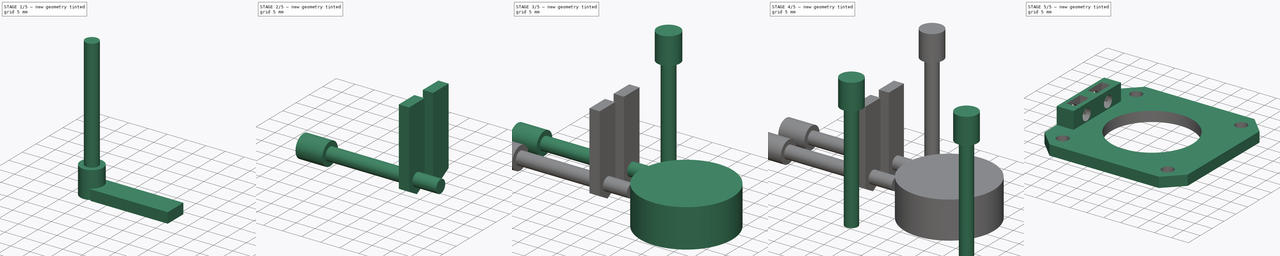
[diagram: build sequence overview — one tinted view per stage of 5, left to right]
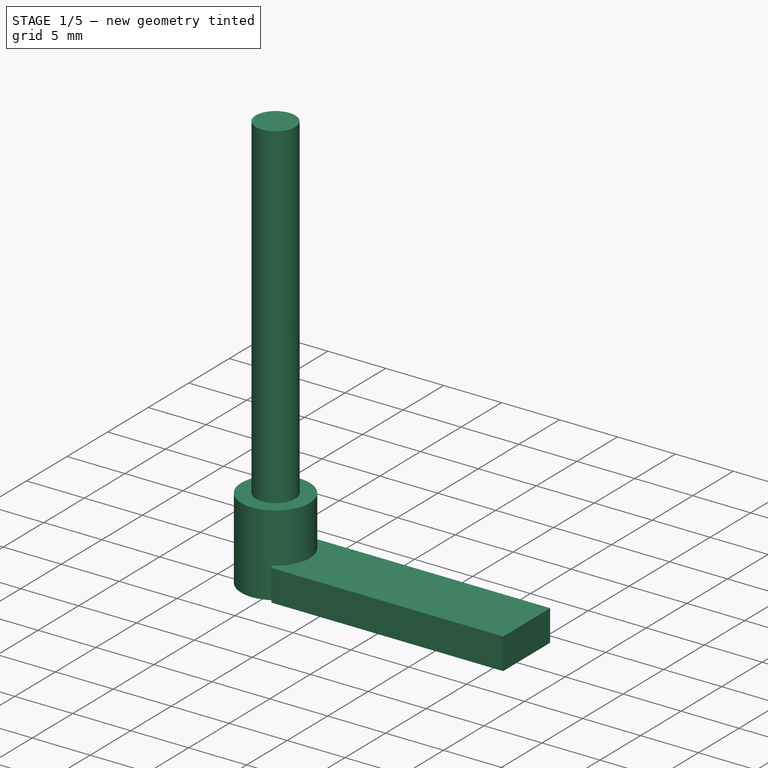
[diagram: stage 1 of 5 — iso view after this stage's code; geometry added in this stage tinted green]
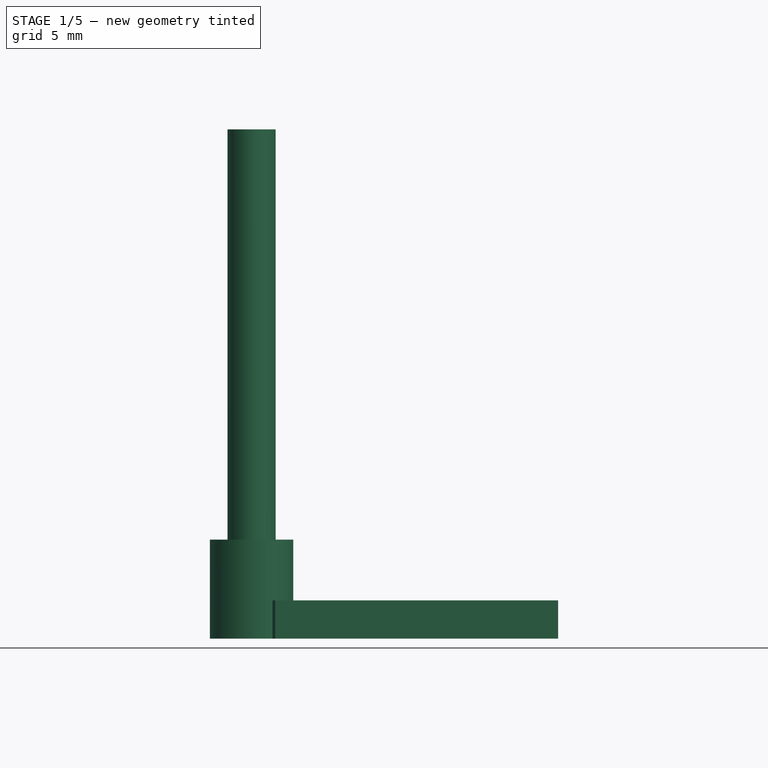
[diagram: stage 1 of 5 — front view after this stage's code; geometry added in this stage tinted green]
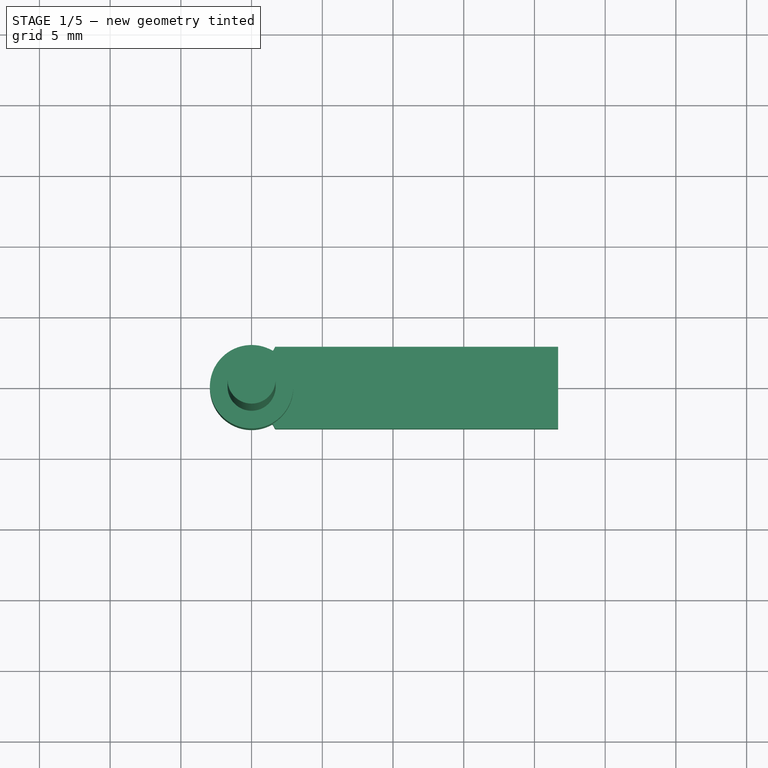
[diagram: stage 1 of 5 — top view after this stage's code; geometry added in this stage tinted green]
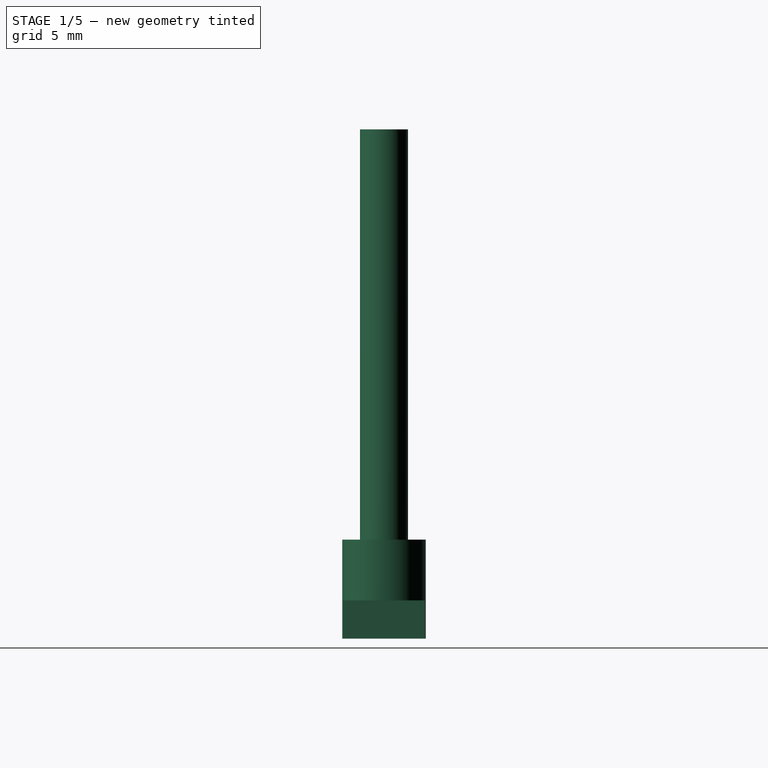
[diagram: stage 1 of 5 — right view after this stage's code; geometry added in this stage tinted green]
FCSTD DOCUMENT  (FreeCAD 0.16R6460 (Git))
Label: Art4MotorFix
License: All rights reserved
LicenseURL: http://en.wikipedia.org/wiki/All_rights_reserved
objects: Part::FeaturePython×8, Part::Cylinder×3, Part::MultiFuse×3, Sketcher::SketchObject×2, PartDesign::Pad×2, Part::Box×1, Part::Cut×1, App::DocumentObjectGroup×1
note: 22 computed .brp shape members not serialized (recipe doc carries the construction recipe); baked Part::Feature solids carry a one-line shape summary decoded from their .brp

FEATURE [Part::Cylinder] Cylinder  label="M3BoltHead"
  Angle = 360
  Height = 7
  Radius = 2.95
FEATURE [Part::Cylinder] Cylinder001  label="M3BoltBody"
  Angle = 360
  Height = 30
  Placement = pos=(0,0,6) rot=(0,0,1;0rad)
  Radius = 1.7
FEATURE [Part::MultiFuse] Fusion  label="M3Bolt"
  Shapes = -> [Cylinder001,Cylinder]
FEATURE [Sketcher::SketchObject] Sketch003  label="M3NutHousingSketch"
  sketch-geometry (5):
    g0: LineSegment StartX=0 StartY=0 StartZ=0 EndX=1.67432 EndY=2.9 EndZ=0
    g1: LineSegment StartX=1.67432 StartY=2.9 StartZ=0 EndX=21.6743 EndY=2.9 EndZ=0
    g2: LineSegment StartX=21.6743 StartY=2.9 StartZ=0 EndX=21.6743 EndY=-2.9 EndZ=0
    g3: LineSegment StartX=21.6743 StartY=-2.9 StartZ=0 EndX=1.67432 EndY=-2.9 EndZ=0
    g4: LineSegment StartX=1.67432 StartY=-2.9 StartZ=0 EndX=0 EndY=0 EndZ=0
  constraints (14):
    c: Coincident(g-1,g0)
    c: Coincident(g0,g1)
    c: Horizontal(g1)
    c: Coincident(g1,g2)
    c: Vertical(g2)
    c: Coincident(g2,g3)
    c: Horizontal(g3)
    c: Coincident(g3,g4)
    c: Coincident(g4,g0)
    c: Equal(g3,g1)
    c: Equal(g4,g0)
    c: DistanceY(g2) = -5.8
    c: Angle(g-1,g0) = 1.0472
    c: DistanceX(g3) = -20
FEATURE [PartDesign::Pad] Pad002  label="M3NutHousing"
  Length = 2.7
  Length2 = 100
  Sketch = -> Sketch003
  Type = 0
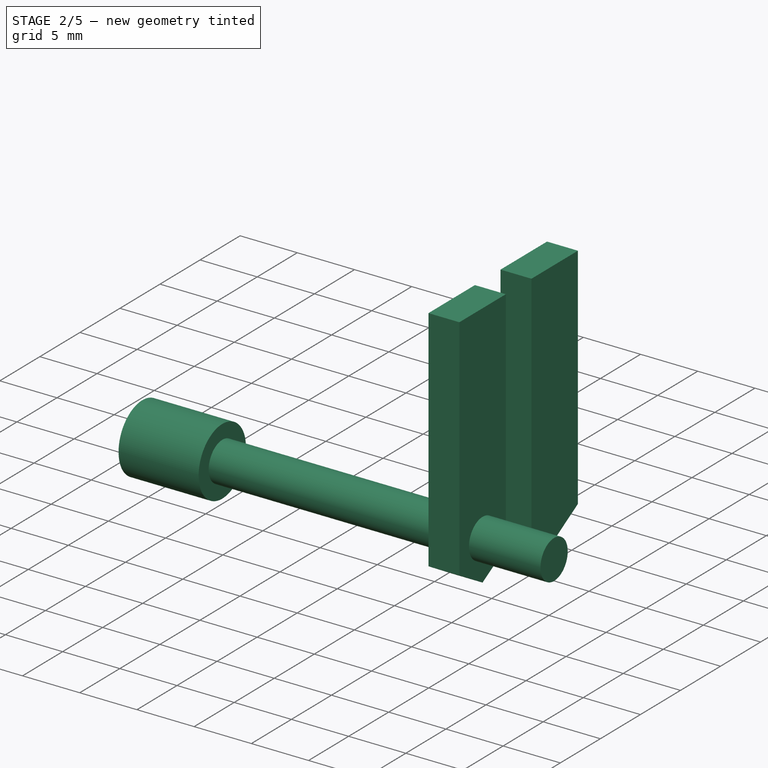
[diagram: stage 2 of 5 — iso view after this stage's code; geometry added in this stage tinted green]
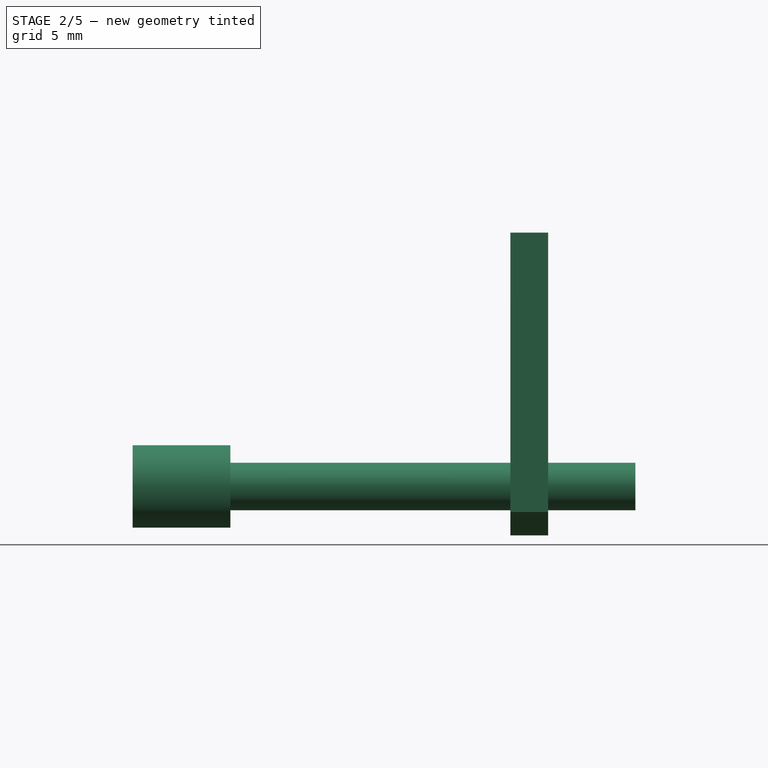
[diagram: stage 2 of 5 — front view after this stage's code; geometry added in this stage tinted green]
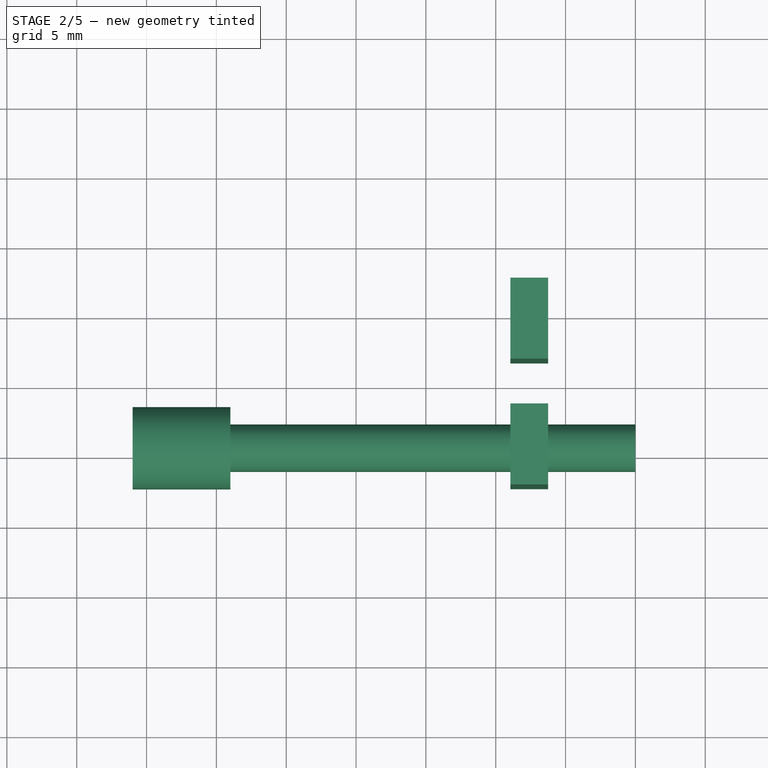
[diagram: stage 2 of 5 — top view after this stage's code; geometry added in this stage tinted green]
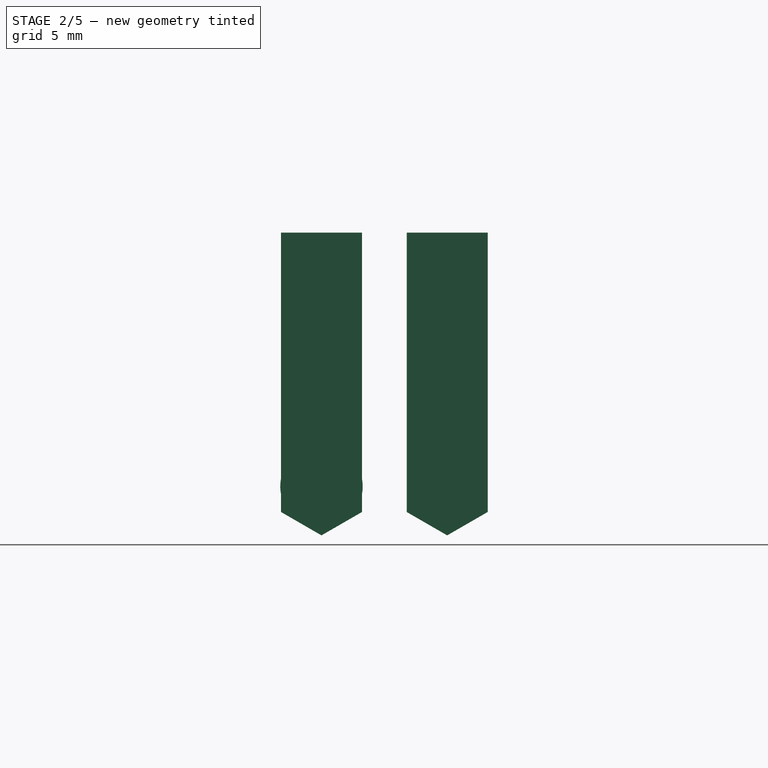
[diagram: stage 2 of 5 — right view after this stage's code; geometry added in this stage tinted green]
FEATURE [Part::FeaturePython] Clone246  label="Clone of M3Bolt082"  # Draft clone (typed FeaturePython)
  Objects = -> [Fusion]
  Placement = pos=(-26,15.65,5) rot=(0.707107,0,0.707107;3.14159rad)
  Scale = (1,1,1)
FEATURE [Part::FeaturePython] Clone247  label="Clone of M3NutHousing022"  # Draft clone (typed FeaturePython)
  Objects = -> [Pad002]
  Placement = pos=(3.75,24.65,1.5) rot=(0,-1,0;1.5708rad)
  Scale = (1,1,1)
FEATURE [Part::FeaturePython] Clone248  label="Clone of M3NutHousing023"  # Draft clone (typed FeaturePython)
  Objects = -> [Pad002]
  Placement = pos=(3.75,15.65,1.5) rot=(0,-1,0;1.5708rad)
  Scale = (1,1,1)
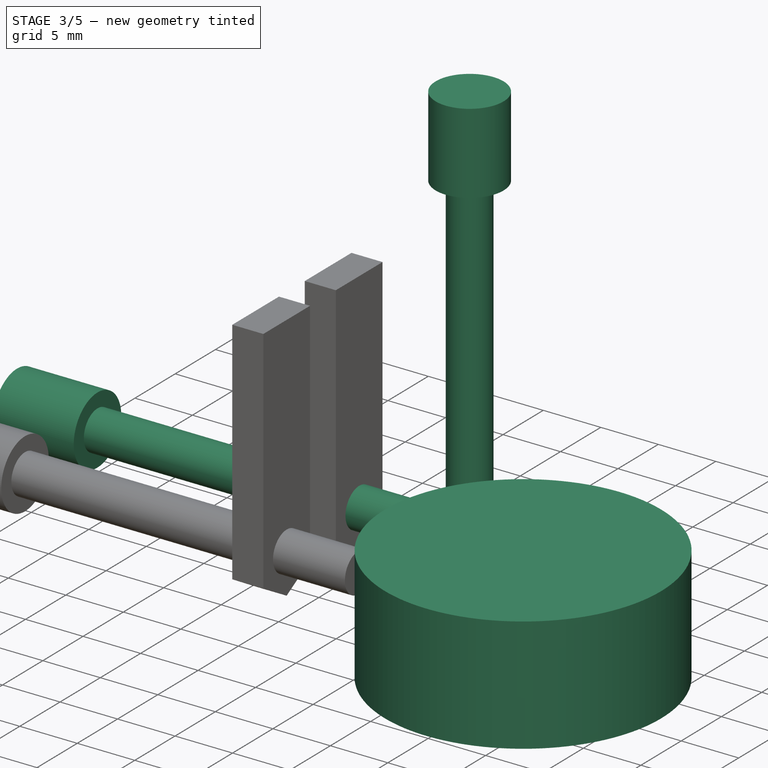
[diagram: stage 3 of 5 — iso view after this stage's code; geometry added in this stage tinted green]
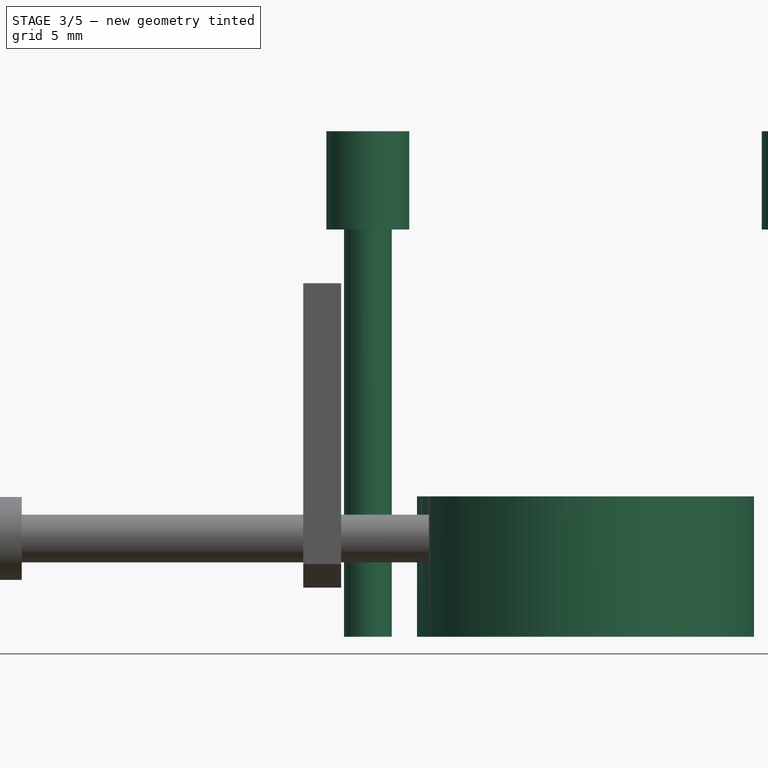
[diagram: stage 3 of 5 — front view after this stage's code; geometry added in this stage tinted green]
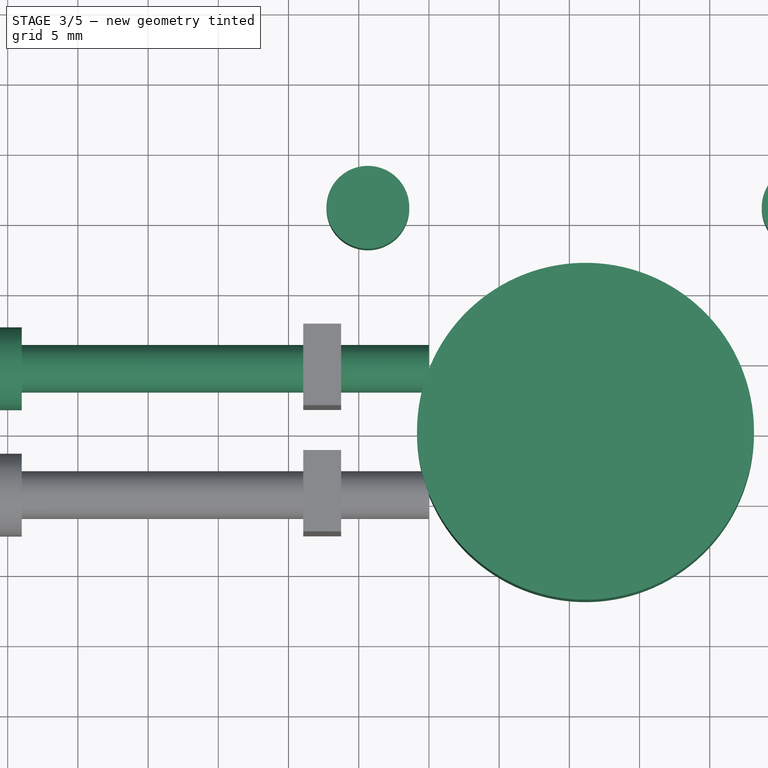
[diagram: stage 3 of 5 — top view after this stage's code; geometry added in this stage tinted green]
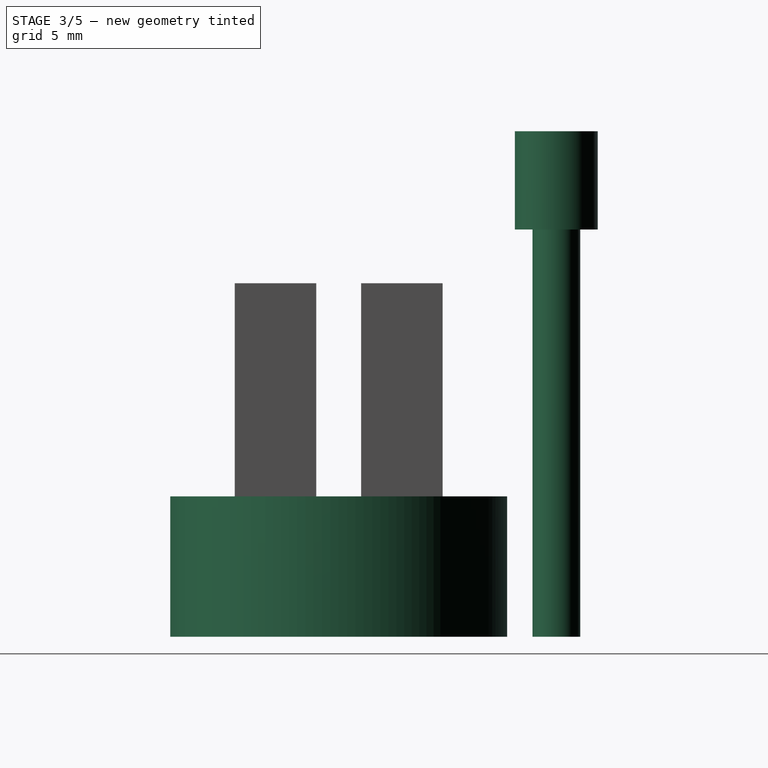
[diagram: stage 3 of 5 — right view after this stage's code; geometry added in this stage tinted green]
FEATURE [Part::FeaturePython] Clone243  label="Clone of M3Bolt079"  # Draft clone (typed FeaturePython)
  Objects = -> [Fusion]
  Placement = pos=(5.65,35.65,34) rot=(0,1,0;3.14159rad)
  Scale = (1,1,1)
FEATURE [Part::FeaturePython] Clone244  label="Clone of M3Bolt080"  # Draft clone (typed FeaturePython)
  Objects = -> [Fusion]
  Placement = pos=(36.65,35.65,34) rot=(0,1,0;3.14159rad)
  Scale = (1,1,1)
FEATURE [Part::Cylinder] Cylinder1023  label="Cylinder1059"
  Angle = 360
  Height = 10
  Placement = pos=(21.15,20.15,-2) rot=(0,0,1;0rad)
  Radius = 12
FEATURE [Part::FeaturePython] Clone245  label="Clone of M3Bolt081"  # Draft clone (typed FeaturePython)
  Objects = -> [Fusion]
  Placement = pos=(-26,24.65,5) rot=(0.707107,0,0.707107;3.14159rad)
  Scale = (1,1,1)
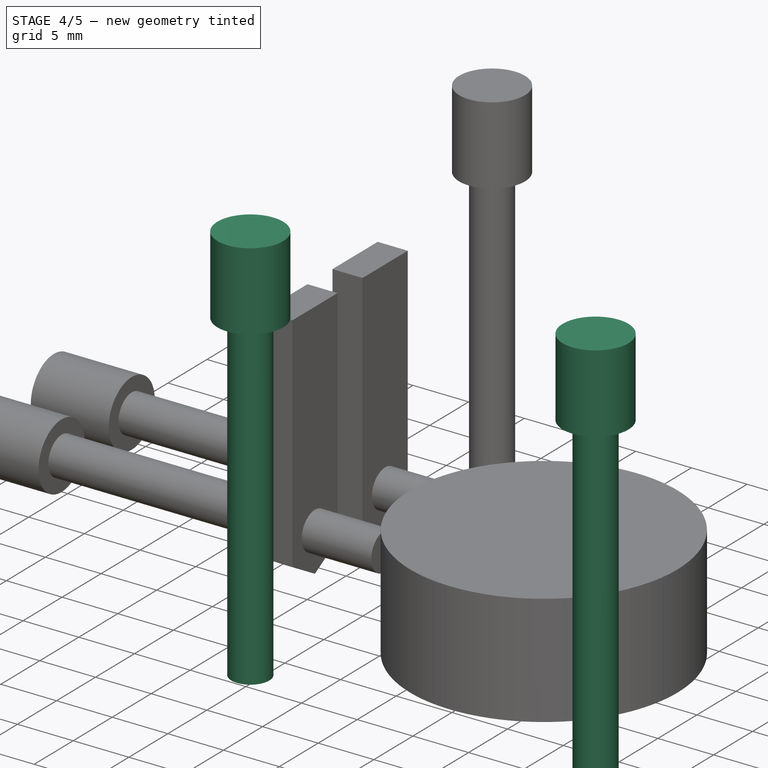
[diagram: stage 4 of 5 — iso view after this stage's code; geometry added in this stage tinted green]
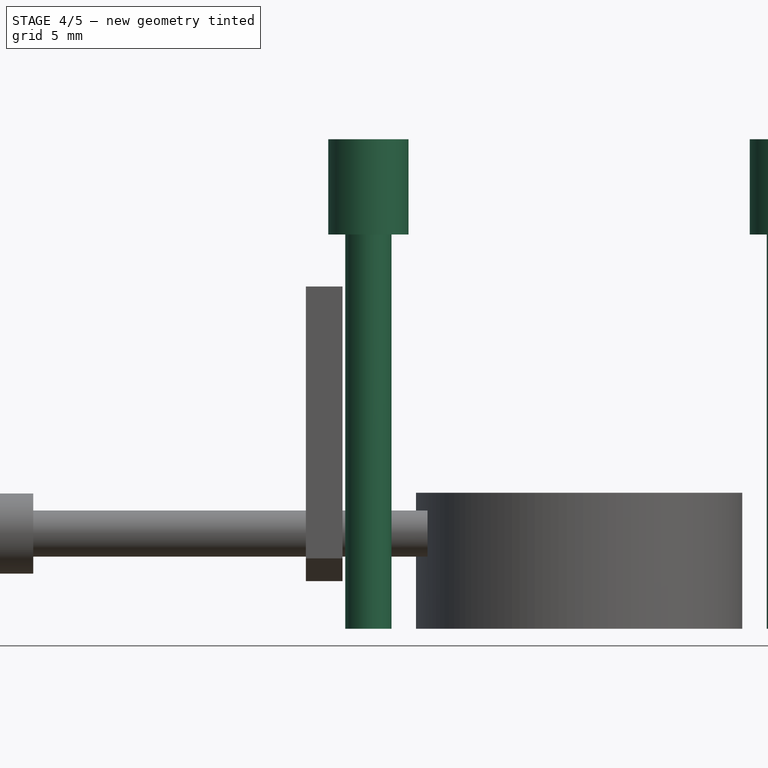
[diagram: stage 4 of 5 — front view after this stage's code; geometry added in this stage tinted green]
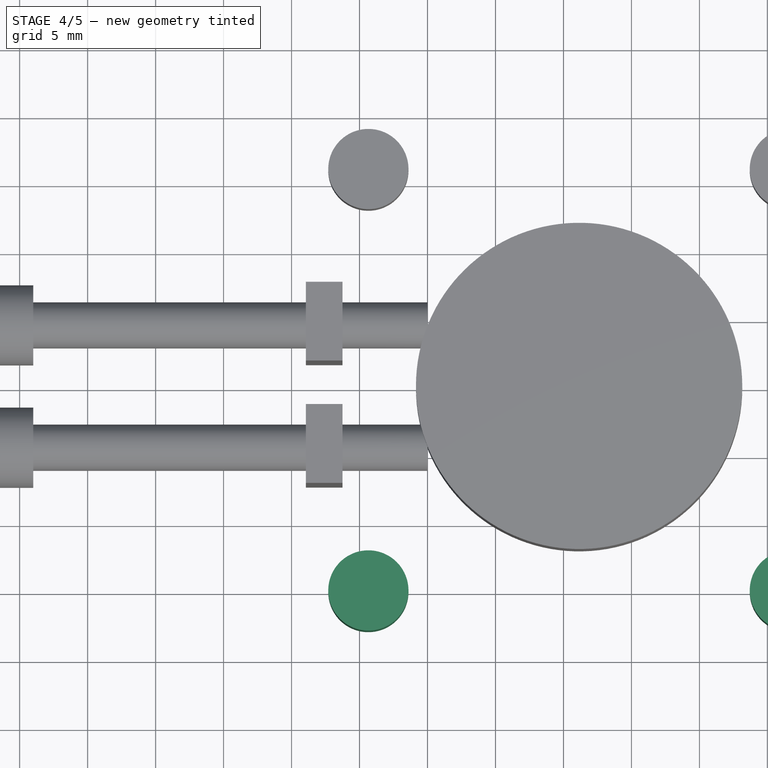
[diagram: stage 4 of 5 — top view after this stage's code; geometry added in this stage tinted green]
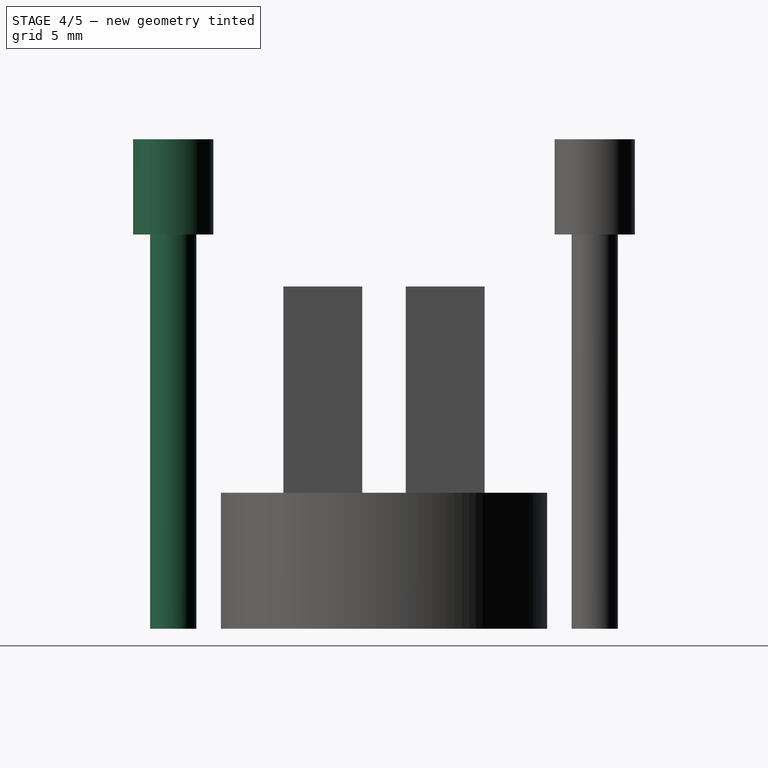
[diagram: stage 4 of 5 — right view after this stage's code; geometry added in this stage tinted green]
FEATURE [Part::FeaturePython] Clone241  label="Clone of M3Bolt077"  # Draft clone (typed FeaturePython)
  Objects = -> [Fusion]
  Placement = pos=(5.65,4.65,34) rot=(0,1,0;3.14159rad)
  Scale = (1,1,1)
FEATURE [Part::FeaturePython] Clone242  label="Clone of M3Bolt078"  # Draft clone (typed FeaturePython)
  Objects = -> [Fusion]
  Placement = pos=(36.65,4.65,34) rot=(0,1,0;3.14159rad)
  Scale = (1,1,1)
FEATURE [Part::MultiFuse] Fusion086
  Shapes = -> [Clone241,Clone242,Cylinder1023,Clone243,Clone244,Clone245,Clone248,Clone246,Clone247]
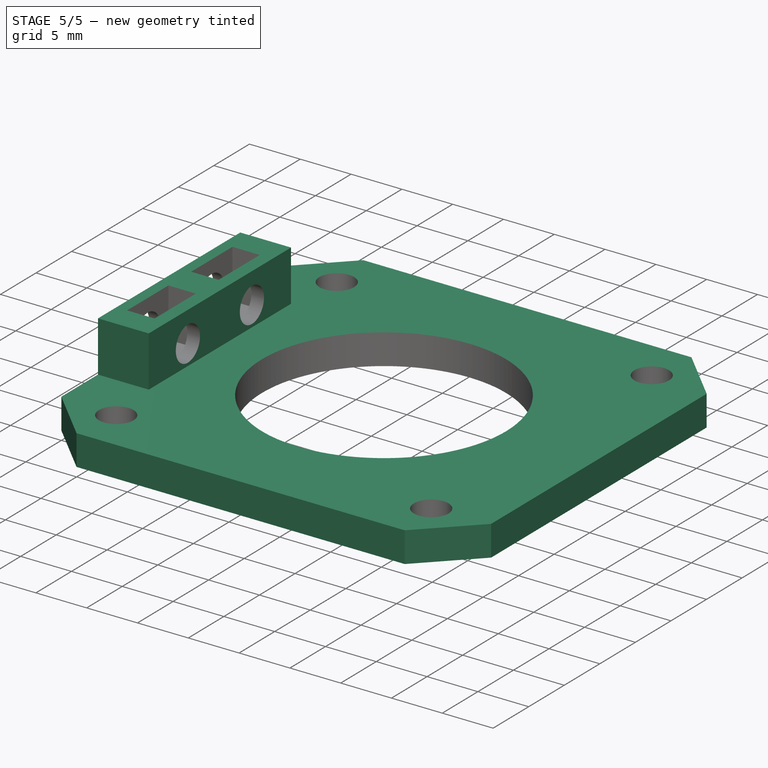
[diagram: stage 5 of 5 — iso view after this stage's code; geometry added in this stage tinted green]
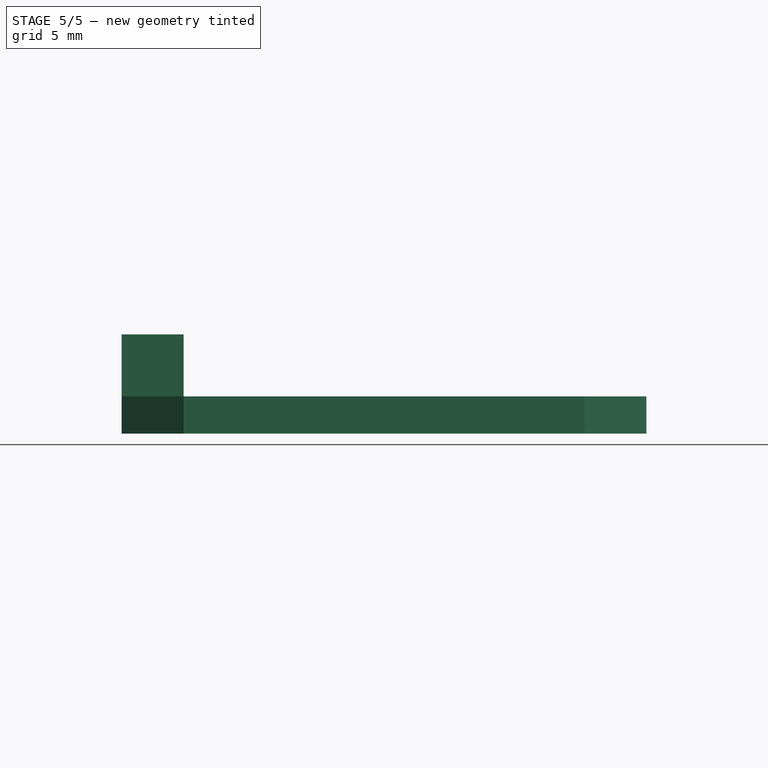
[diagram: stage 5 of 5 — front view after this stage's code; geometry added in this stage tinted green]
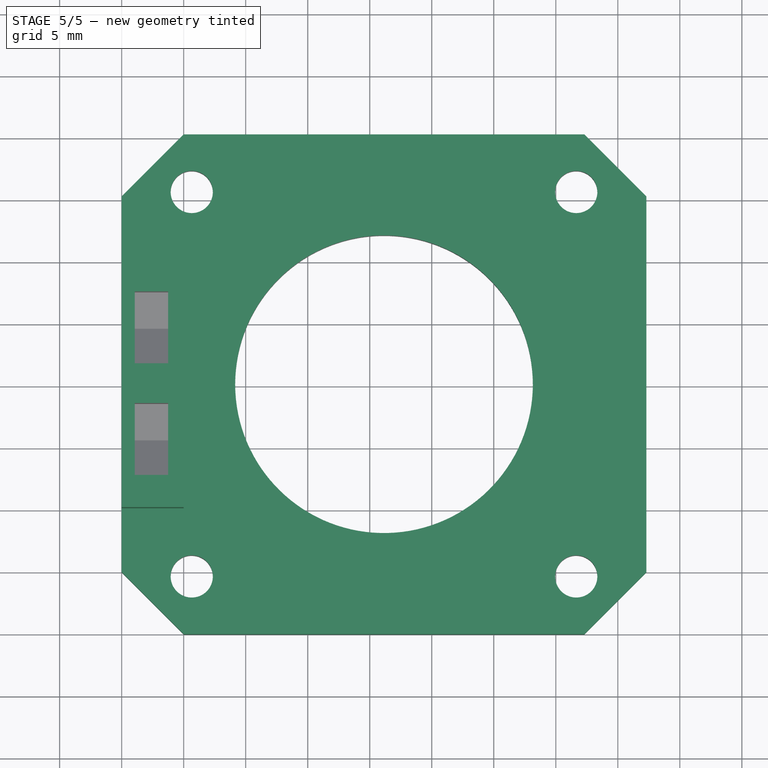
[diagram: stage 5 of 5 — top view after this stage's code; geometry added in this stage tinted green]
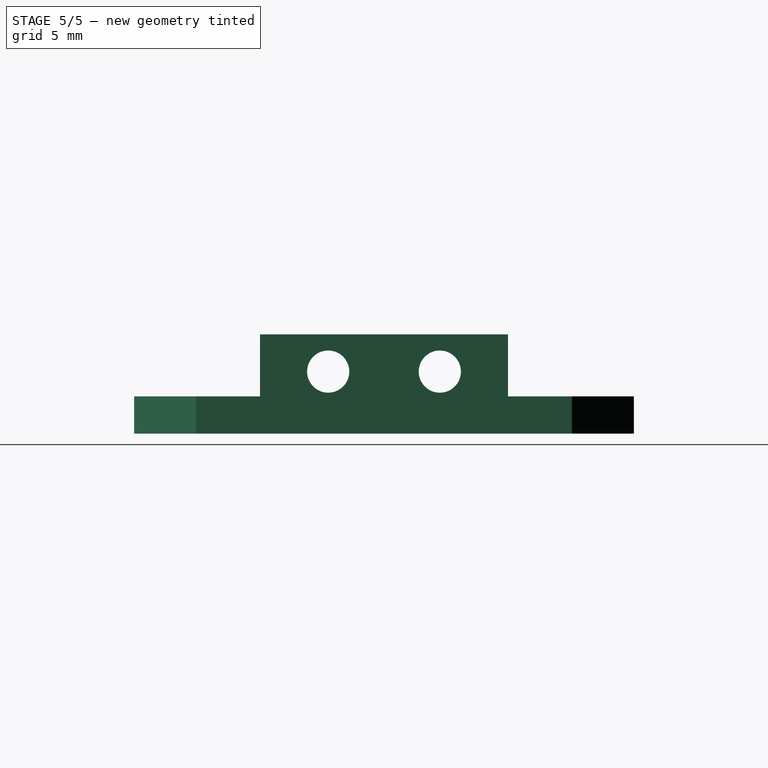
[diagram: stage 5 of 5 — right view after this stage's code; geometry added in this stage tinted green]
FEATURE [Sketcher::SketchObject] Sketch045
  sketch-geometry (9):
    g0: LineSegment StartX=42.3 StartY=5 StartZ=0 EndX=42.3 EndY=35.3 EndZ=0
    g1: LineSegment StartX=37.3 StartY=40.3 StartZ=0 EndX=5 EndY=40.3 EndZ=0
    g2: LineSegment StartX=0 StartY=35.3 StartZ=0 EndX=0 EndY=5 EndZ=0
    g3: LineSegment StartX=0 StartY=35.3 StartZ=0 EndX=5 EndY=40.3 EndZ=0
    g4: LineSegment StartX=37.3 StartY=40.3 StartZ=0 EndX=42.3 EndY=35.3 EndZ=0
    g5: LineSegment StartX=42.3 StartY=5 StartZ=0 EndX=37.3 EndY=0 EndZ=0
    g6: LineSegment StartX=37.3 StartY=0 StartZ=0 EndX=5 EndY=0 EndZ=0
    g7: LineSegment StartX=5 StartY=0 StartZ=0 EndX=0 EndY=5 EndZ=0
    g8: LineSegment [constr] StartX=5 StartY=40.3 StartZ=0 EndX=5 EndY=0 EndZ=0
  constraints (26):
    c: Horizontal(g1)
    c: Vertical(g0)
    c: Vertical(g2)
    c: Coincident(g3,g2)
    c: Coincident(g3,g1)
    c: Coincident(g4,g1)
    c: Coincident(g4,g0)
    c: Coincident(g5,g0)
    c: Coincident(g6,g5)
    c: Horizontal(g6)
    c: Coincident(g7,g6)
    c: Coincident(g7,g2)
    c: PointOnObject(g6,g-1)
    c: PointOnObject(g2,g-2)
    c: Angle(g7,g-1) = 0.785398
    c: Angle(g4) = -0.785398
    c: Angle(g3) = 0.785398
    c: Angle(g5) = -2.35619
    c: Equal(g2,g0)
    c: Equal(g6,g1)
    c: DistanceX(g0,g2) = -42.3
    c: DistanceY(g6,g1) = 40.3
    c: Coincident(g8,g1)
    c: Coincident(g8,g6)
    c: Vertical(g8)
    c: DistanceX(g1,g0) = 5
FEATURE [PartDesign::Pad] Pad033
  Length = 3
  Length2 = 100
  Sketch = -> Sketch045
  Type = 0
FEATURE [Part::Box] Box253  label="Cube017"
  Height = 5
  Length = 5
  Placement = pos=(0,10.15,3) rot=(0,0,1;0rad)
  Width = 20
FEATURE [Part::MultiFuse] Fusion085
  Shapes = -> [Pad033,Box253]
FEATURE [Part::Cut] Cut073  label="Art4MotorFix"
  Base = -> Fusion085
  Tool = -> Fusion086
FEATURE [App::DocumentObjectGroup] Group  label="Master"
  Group = -> [Fusion,Pad002]
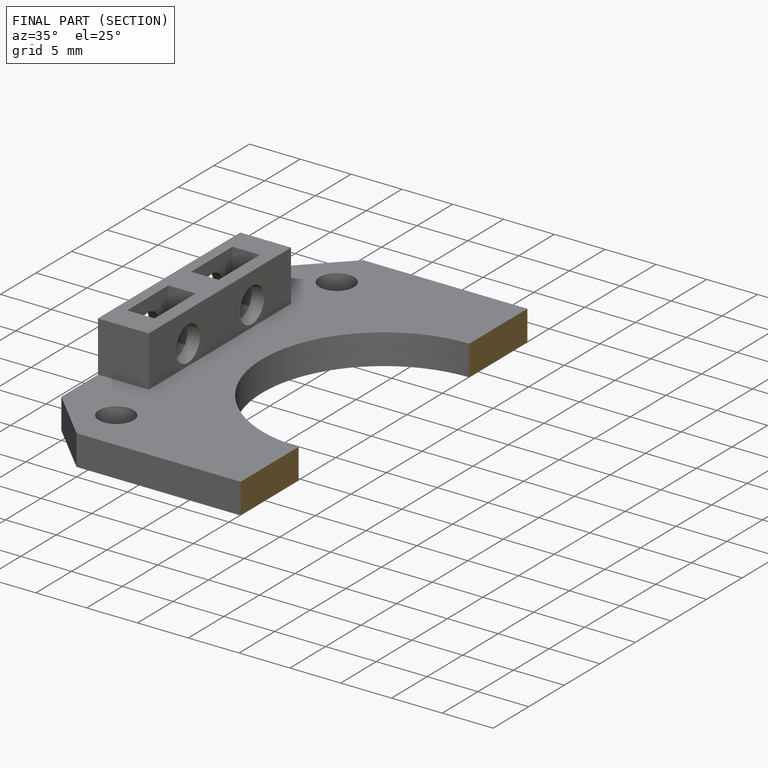
[diagram: finished part — half-section view (interior)]
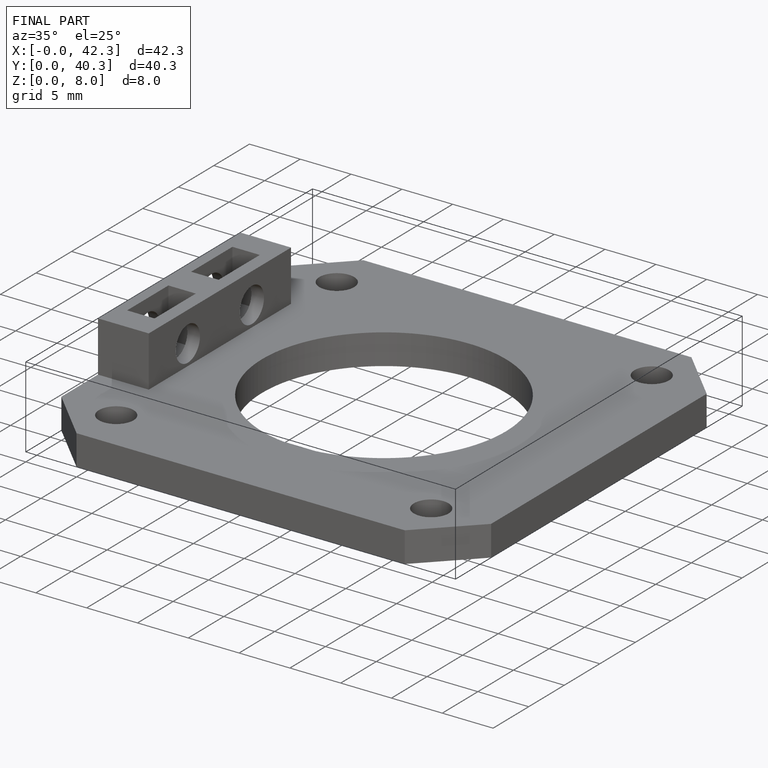
[diagram: finished part — iso view with bounding-box wireframe]
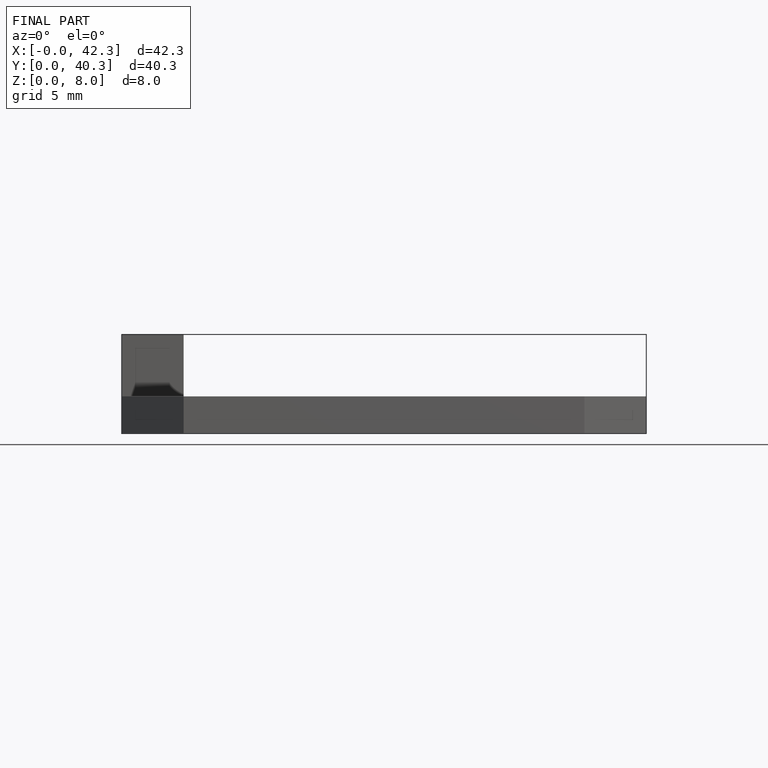
[diagram: finished part — front view with bounding-box wireframe]
